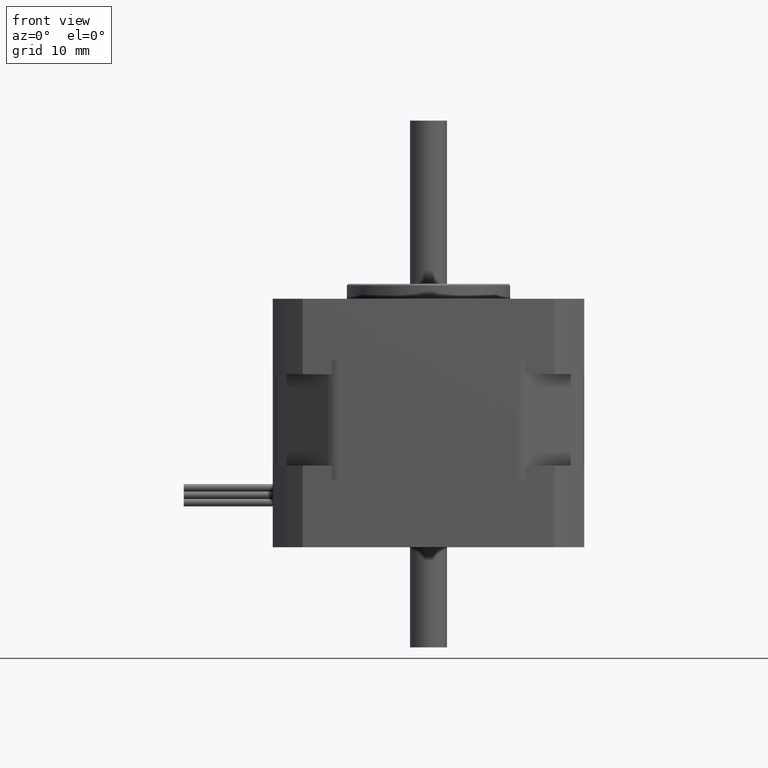
[diagram: clean part render]
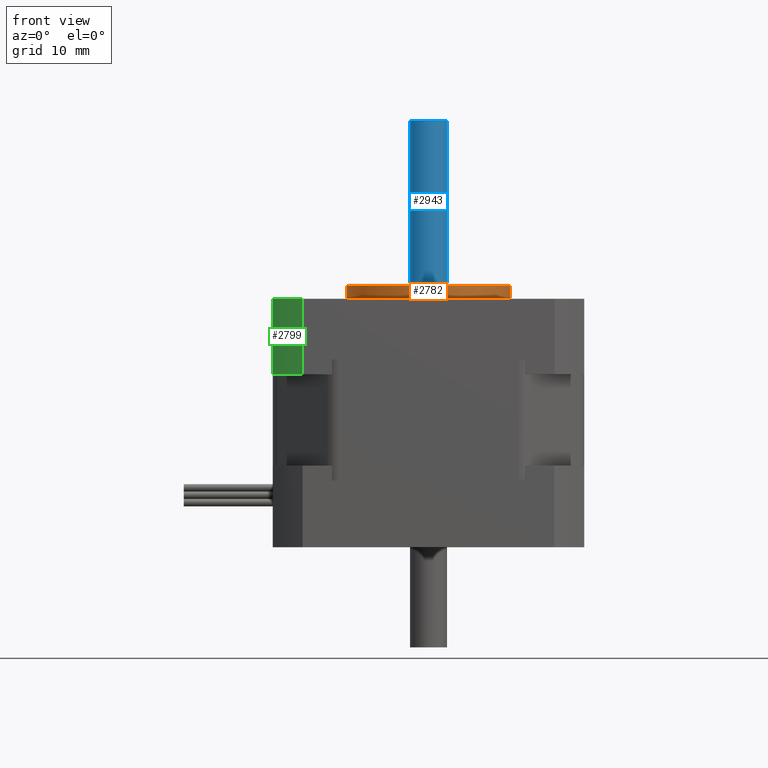
[diagram: same view with three faces highlighted in distinct colors, each labeled with its STEP entity id]
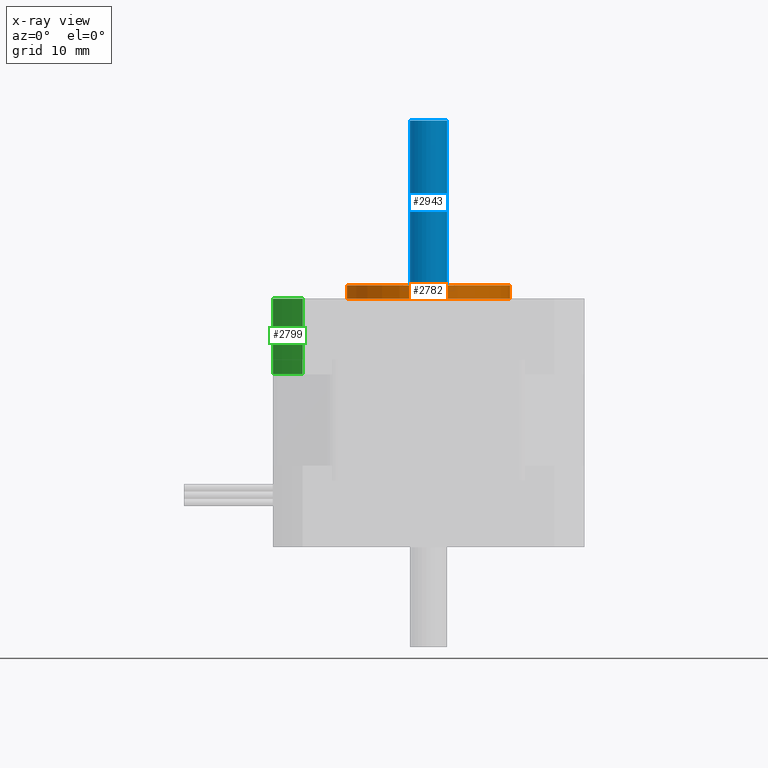
[diagram: x-ray of the same camera — body ghosted, the three highlighted faces saturated]
A machine part, front view with three faces highlighted in distinct colors.
The next image is the same camera in x-ray (body ghosted, the three faces saturated) — at least one of them is partly hidden behind the body in this view.
Their STEP definitions:

[orange] entity #2782 — the highlighted cylindrical surface (bore or boss wall) has radius 11 mm, axis along (0, 0, 1).
#38=FACE_BOUND('',#461,.T.);
#262=FACE_OUTER_BOUND('',#460,.T.);
#460=EDGE_LOOP('',(#1929));
#461=EDGE_LOOP('',(#1930));
#1031=CIRCLE('',#3017,11.);
#1032=CIRCLE('',#3019,11.);
#1248=VERTEX_POINT('',#4475);
#1249=VERTEX_POINT('',#4478);
#1511=EDGE_CURVE('',#1248,#1248,#1031,.T.);
#1512=EDGE_CURVE('',#1249,#1249,#1032,.T.);
#1929=ORIENTED_EDGE('',*,*,#1512,.F.);
#1930=ORIENTED_EDGE('',*,*,#1511,.F.);
#2513=CYLINDRICAL_SURFACE('',#3018,11.);
#2782=ADVANCED_FACE('',(#262,#38),#2513,.T.);
#3017=AXIS2_PLACEMENT_3D('',#4476,#3526,#3527);
#3018=AXIS2_PLACEMENT_3D('',#4477,#3528,#3529);
#3019=AXIS2_PLACEMENT_3D('',#4479,#3530,#3531);
#3526=DIRECTION('center_axis',(0.,0.,1.));
#3527=DIRECTION('ref_axis',(-1.,-7.63139177052848E-16,0.));
#3528=DIRECTION('center_axis',(0.,0.,1.));
#3529=DIRECTION('ref_axis',(-1.,-7.63139177052848E-16,0.));
#3530=DIRECTION('center_axis',(0.,0.,-1.));
#3531=DIRECTION('ref_axis',(-1.,-7.63139177052848E-16,0.));
#4475=CARTESIAN_POINT('',(11.,6.06803210647786E-15,18.15));
#4476=CARTESIAN_POINT('Origin',(4.44089209850063E-15,-3.67356583030809E-15,
18.15));
#4477=CARTESIAN_POINT('Origin',(4.44089209850063E-15,-3.67356583030809E-15,
16.35));
#4478=CARTESIAN_POINT('',(11.,6.06807659633533E-15,16.35));
#4479=CARTESIAN_POINT('Origin',(4.44089209850063E-15,-3.67356583030809E-15,
16.35));

[blue] entity #2943 — the highlighted cylindrical surface (bore or boss wall) has radius 2.5 mm, axis along (0, 0, 1).
#103=FACE_BOUND('',#687,.T.);
#423=FACE_OUTER_BOUND('',#686,.T.);
#686=EDGE_LOOP('',(#2497));
#687=EDGE_LOOP('',(#2498));
#1183=CIRCLE('',#3347,2.5);
#1184=CIRCLE('',#3348,2.5);
#1420=VERTEX_POINT('',#5069);
#1421=VERTEX_POINT('',#5071);
#1771=EDGE_CURVE('',#1420,#1420,#1183,.T.);
#1772=EDGE_CURVE('',#1421,#1421,#1184,.T.);
#2497=ORIENTED_EDGE('',*,*,#1771,.F.);
#2498=ORIENTED_EDGE('',*,*,#1772,.F.);
#2575=CYLINDRICAL_SURFACE('',#3346,2.5);
#2943=ADVANCED_FACE('',(#423,#103),#2575,.T.);
#3346=AXIS2_PLACEMENT_3D('',#5068,#4276,#4277);
#3347=AXIS2_PLACEMENT_3D('',#5070,#4278,#4279);
#3348=AXIS2_PLACEMENT_3D('',#5072,#4280,#4281);
#4276=DIRECTION('center_axis',(0.,0.,1.));
#4277=DIRECTION('ref_axis',(1.,0.,0.));
#4278=DIRECTION('center_axis',(0.,0.,1.));
#4279=DIRECTION('ref_axis',(1.,0.,0.));
#4280=DIRECTION('center_axis',(0.,0.,-1.));
#4281=DIRECTION('ref_axis',(1.,0.,0.));
#5068=CARTESIAN_POINT('Origin',(4.44089209850063E-15,-3.67356583030809E-15,
16.35));
#5069=CARTESIAN_POINT('',(-2.5,-3.97972753009493E-15,40.35));
#5070=CARTESIAN_POINT('Origin',(4.44089209850063E-15,-3.67356583030809E-15,
40.35));
#5071=CARTESIAN_POINT('',(-2.5,-3.97972753009493E-15,16.35));
#5072=CARTESIAN_POINT('Origin',(4.44089209850063E-15,-3.67356583030809E-15,
16.35));

[green] entity #2799 — the highlighted cylindrical surface (partial cylindrical patch) has radius 27 mm, axis along (0, 0, 1).
#279=FACE_OUTER_BOUND('',#486,.T.);
#486=EDGE_LOOP('',(#1968,#1969,#1970,#1971));
#762=LINE('',#4526,#920);
#763=LINE('',#4530,#921);
#920=VECTOR('',#3594,10.);
#921=VECTOR('',#3599,10.);
#1028=CIRCLE('',#3011,27.);
#1047=CIRCLE('',#3051,27.);
#1242=VERTEX_POINT('',#4457);
#1243=VERTEX_POINT('',#4459);
#1263=VERTEX_POINT('',#4524);
#1264=VERTEX_POINT('',#4528);
#1503=EDGE_CURVE('',#1243,#1242,#1028,.T.);
#1529=EDGE_CURVE('',#1242,#1263,#762,.T.);
#1530=EDGE_CURVE('',#1263,#1264,#1047,.T.);
#1531=EDGE_CURVE('',#1243,#1264,#763,.T.);
#1968=ORIENTED_EDGE('',*,*,#1530,.T.);
#1969=ORIENTED_EDGE('',*,*,#1531,.F.);
#1970=ORIENTED_EDGE('',*,*,#1503,.T.);
#1971=ORIENTED_EDGE('',*,*,#1529,.T.);
#2522=CYLINDRICAL_SURFACE('',#3050,27.);
#2799=ADVANCED_FACE('',(#279),#2522,.T.);
#3011=AXIS2_PLACEMENT_3D('',#4460,#3509,#3510);
#3050=AXIS2_PLACEMENT_3D('',#4527,#3595,#3596);
#3051=AXIS2_PLACEMENT_3D('',#4529,#3597,#3598);
#3509=DIRECTION('center_axis',(0.,0.,1.));
#3510=DIRECTION('ref_axis',(-0.777777777777778,-0.628539361054709,0.));
#3594=DIRECTION('',(0.,0.,1.));
#3595=DIRECTION('center_axis',(0.,0.,1.));
#3596=DIRECTION('ref_axis',(-0.777777777777778,-0.628539361054709,0.));
#3597=DIRECTION('center_axis',(0.,0.,-1.));
#3598=DIRECTION('ref_axis',(-0.777777777777778,-0.628539361054709,0.));
#3599=DIRECTION('',(0.,0.,1.));
#4457=CARTESIAN_POINT('',(-16.9705627484771,-21.,6.15));
#4459=CARTESIAN_POINT('',(-21.,-16.9705627484772,6.15));
#4460=CARTESIAN_POINT('Origin',(4.44089209850063E-15,-3.67356583030809E-15,
6.15));
#4524=CARTESIAN_POINT('',(-16.9705627484771,-21.,16.35));
#4526=CARTESIAN_POINT('',(-16.9705627484771,-21.,6.15));
#4527=CARTESIAN_POINT('Origin',(4.44089209850063E-15,-3.67356583030809E-15,
6.15));
#4528=CARTESIAN_POINT('',(-21.,-16.9705627484772,16.35));
#4529=CARTESIAN_POINT('Origin',(4.44089209850063E-15,-3.67356583030809E-15,
16.35));
#4530=CARTESIAN_POINT('',(-21.,-16.9705627484772,6.15));